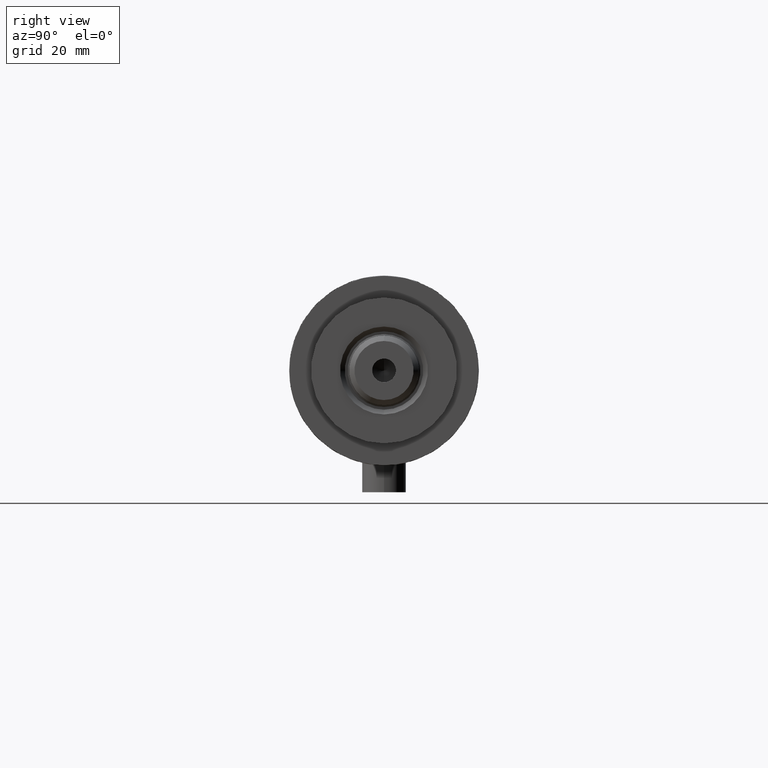
[diagram: clean part render]
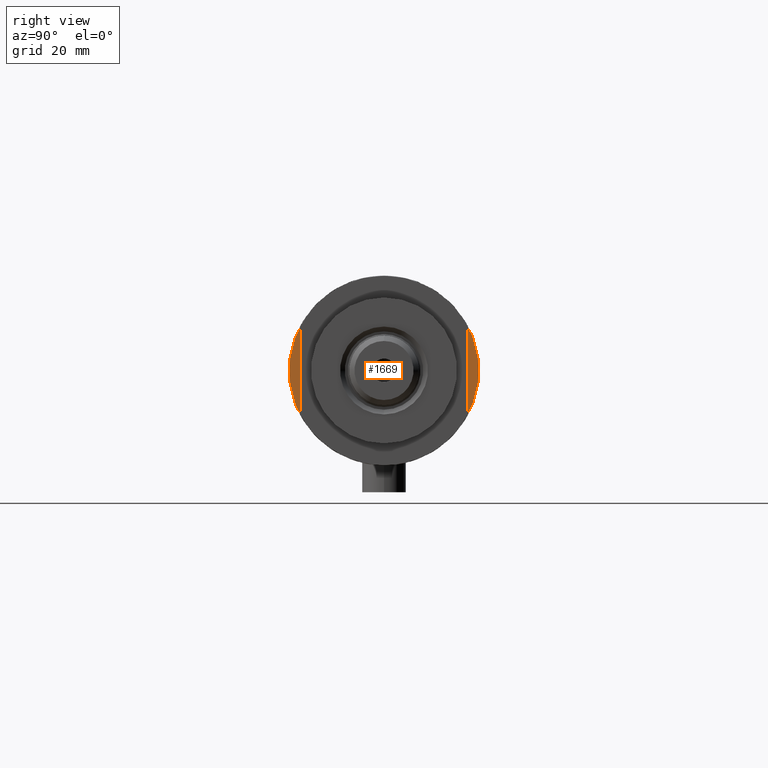
[diagram: same view with one face highlighted and labeled with its STEP entity id]
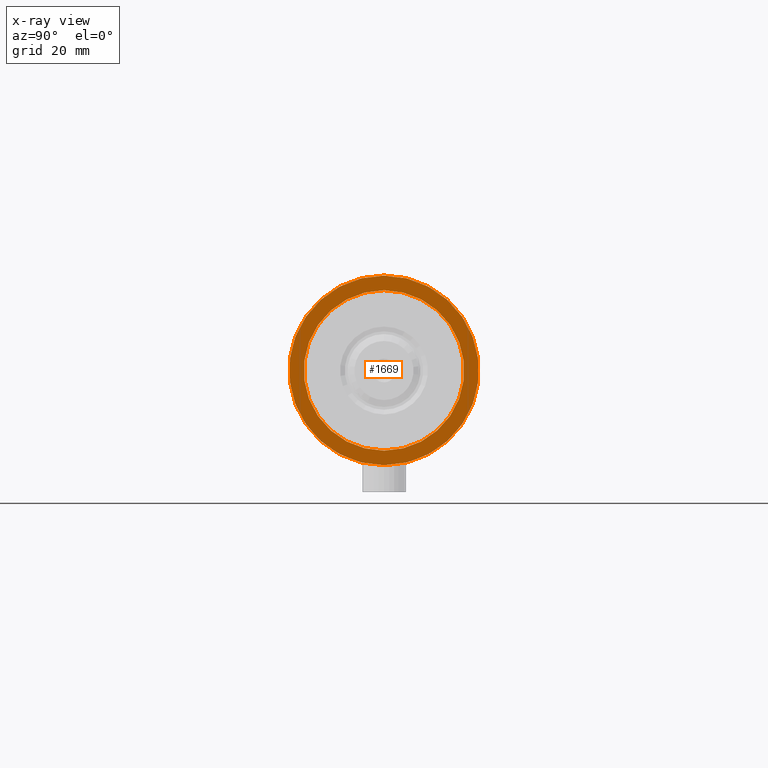
[diagram: x-ray of the same camera — body ghosted, the highlighted face saturated]
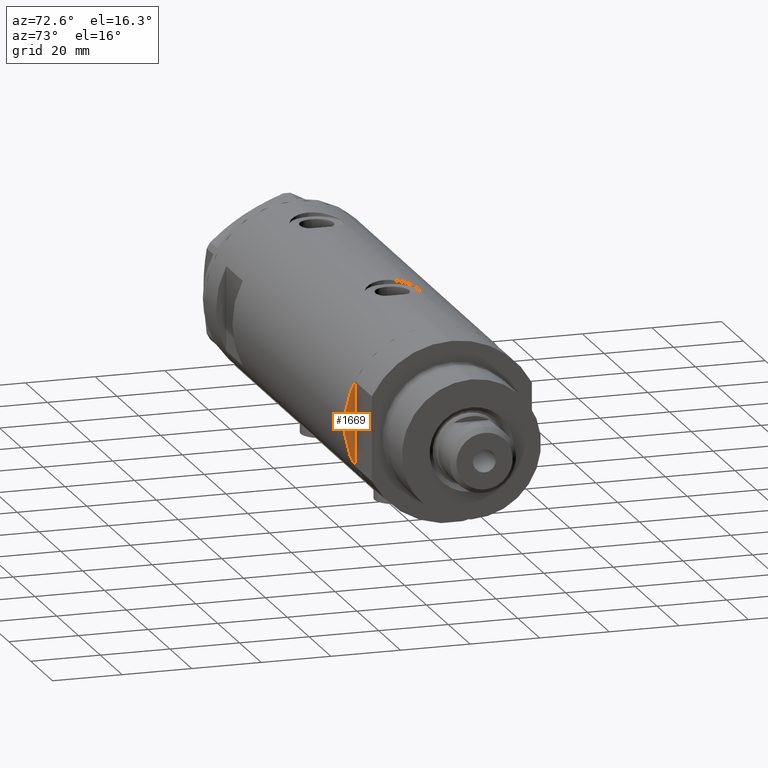
[diagram: same view with one face highlighted and labeled with its STEP entity id]
A machine part, right view. The second image highlights one B-rep face of the part: STEP entity #1669.
The next image is the same camera in x-ray: the body ghosted, the highlighted face saturated — about 0% of this face is hidden behind the body in this view.
A second angle (auxiliary view) of the same face is appended — the face is thin or edge-on in the first view.
In plain terms, the highlighted planar face has unit normal (-1, -0, 0).
Its self-contained STEP definition (entity closure, byte-faithful):
#142 = EDGE_CURVE ( 'NONE', #968, #180, #4564, .T. ) ;
#180 = VERTEX_POINT ( 'NONE', #4804 ) ;
#301 = AXIS2_PLACEMENT_3D ( 'NONE', #2099, #4150, #514 ) ;
#494 = VERTEX_POINT ( 'NONE', #2860 ) ;
#514 = DIRECTION ( 'NONE',  ( 1.000000000000000000, 0.000000000000000000, -0.000000000000000000 ) ) ;
#604 = DIRECTION ( 'NONE',  ( 0.000000000000000000, 0.000000000000000000, 1.000000000000000000 ) ) ;
#863 = AXIS2_PLACEMENT_3D ( 'NONE', #2871, #2484, #5156 ) ;
#927 = CARTESIAN_POINT ( 'NONE',  ( 22.00000000000000000, 2.694222958124176809E-15, -63.95000000000000995 ) ) ;
#968 = VERTEX_POINT ( 'NONE', #927 ) ;
#1142 = AXIS2_PLACEMENT_3D ( 'NONE', #2206, #1862, #3809 ) ;
#1363 = PLANE ( 'NONE',  #301 ) ;
#1381 = ORIENTED_EDGE ( 'NONE', *, *, #4048, .F. ) ;
#1626 = DIRECTION ( 'NONE',  ( 1.000000000000000000, 0.000000000000000000, 0.000000000000000000 ) ) ;
#1669 = ADVANCED_FACE ( 'NONE', ( #1728, #4044 ), #1363, .F. ) ;
#1685 = ORIENTED_EDGE ( 'NONE', *, *, #142, .F. ) ;
#1728 = FACE_BOUND ( 'NONE', #4436, .T. ) ;
#1815 = EDGE_CURVE ( 'NONE', #180, #968, #3828, .T. ) ;
#1862 = DIRECTION ( 'NONE',  ( 0.000000000000000000, 0.000000000000000000, -1.000000000000000000 ) ) ;
#2099 = CARTESIAN_POINT ( 'NONE',  ( 0.000000000000000000, 0.000000000000000000, -63.95000000000000995 ) ) ;
#2128 = VERTEX_POINT ( 'NONE', #2472 ) ;
#2206 = CARTESIAN_POINT ( 'NONE',  ( 0.000000000000000000, 0.000000000000000000, -63.95000000000000995 ) ) ;
#2472 = CARTESIAN_POINT ( 'NONE',  ( -26.00000000000000355, 3.184081677783118585E-15, -63.95000000000000995 ) ) ;
#2484 = DIRECTION ( 'NONE',  ( 0.000000000000000000, 0.000000000000000000, -1.000000000000000000 ) ) ;
#2662 = AXIS2_PLACEMENT_3D ( 'NONE', #3863, #4285, #3470 ) ;
#2860 = CARTESIAN_POINT ( 'NONE',  ( 26.00000000000000355, 0.000000000000000000, -63.95000000000000995 ) ) ;
#2871 = CARTESIAN_POINT ( 'NONE',  ( 0.000000000000000000, 0.000000000000000000, -63.95000000000000995 ) ) ;
#2903 = CIRCLE ( 'NONE', #2662, 26.00000000000000355 ) ;
#3007 = ORIENTED_EDGE ( 'NONE', *, *, #1815, .F. ) ;
#3416 = AXIS2_PLACEMENT_3D ( 'NONE', #4211, #604, #1626 ) ;
#3470 = DIRECTION ( 'NONE',  ( 1.000000000000000000, 0.000000000000000000, 0.000000000000000000 ) ) ;
#3809 = DIRECTION ( 'NONE',  ( -1.000000000000000000, 0.000000000000000000, 0.000000000000000000 ) ) ;
#3828 = CIRCLE ( 'NONE', #1142, 22.00000000000000000 ) ;
#3862 = EDGE_CURVE ( 'NONE', #2128, #494, #4831, .T. ) ;
#3863 = CARTESIAN_POINT ( 'NONE',  ( 0.000000000000000000, 0.000000000000000000, -63.95000000000000995 ) ) ;
#4044 = FACE_OUTER_BOUND ( 'NONE', #4678, .T. ) ;
#4048 = EDGE_CURVE ( 'NONE', #494, #2128, #2903, .T. ) ;
#4150 = DIRECTION ( 'NONE',  ( 0.000000000000000000, 0.000000000000000000, 1.000000000000000000 ) ) ;
#4211 = CARTESIAN_POINT ( 'NONE',  ( 0.000000000000000000, 0.000000000000000000, -63.95000000000000995 ) ) ;
#4285 = DIRECTION ( 'NONE',  ( 0.000000000000000000, 0.000000000000000000, 1.000000000000000000 ) ) ;
#4436 = EDGE_LOOP ( 'NONE', ( #3007, #1685 ) ) ;
#4564 = CIRCLE ( 'NONE', #863, 22.00000000000000000 ) ;
#4678 = EDGE_LOOP ( 'NONE', ( #1381, #4998 ) ) ;
#4804 = CARTESIAN_POINT ( 'NONE',  ( -22.00000000000000000, 0.000000000000000000, -63.95000000000000995 ) ) ;
#4831 = CIRCLE ( 'NONE', #3416, 26.00000000000000355 ) ;
#4998 = ORIENTED_EDGE ( 'NONE', *, *, #3862, .F. ) ;
#5156 = DIRECTION ( 'NONE',  ( -1.000000000000000000, 0.000000000000000000, 0.000000000000000000 ) ) ;